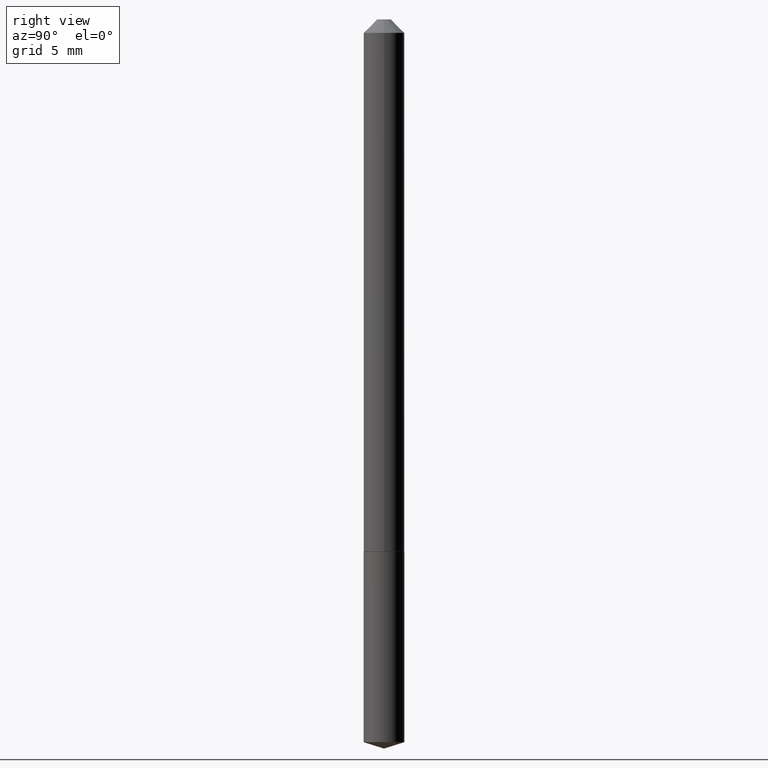
[diagram: clean part render]
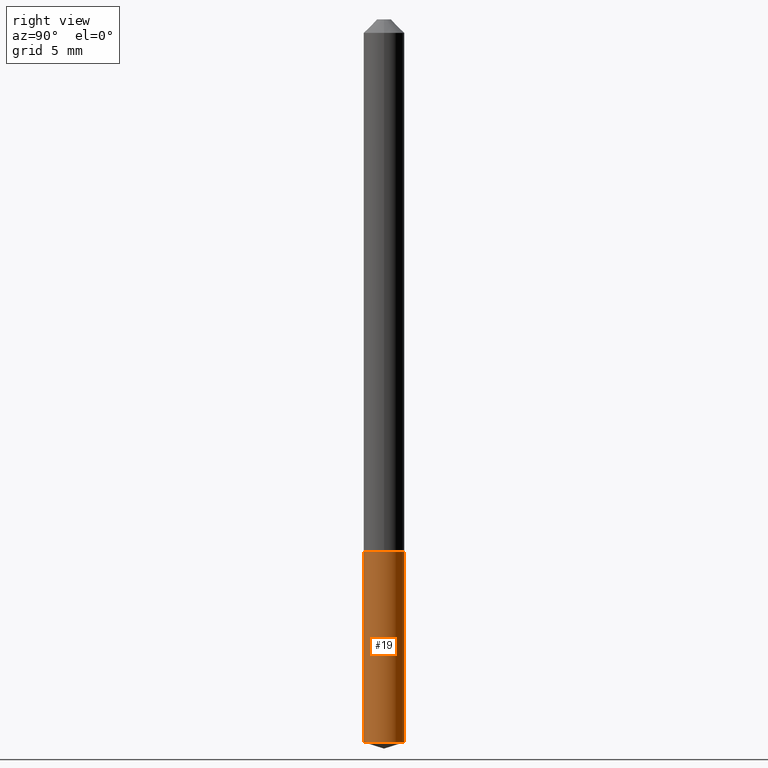
[diagram: same view with one face highlighted and labeled with its STEP entity id]
A machine part, right view. The second image highlights one B-rep face of the part: STEP entity #19.
In plain terms, the highlighted cylindrical surface (edge-blend (fillet) strip) has radius 1.2001 mm, axis along (-0, 0, 1).
Its self-contained STEP definition (entity closure, byte-faithful):
#17 = CIRCLE ( 'NONE', #94, 0.04724999999999999339 ) ;
#19 = ADVANCED_FACE ( 'NONE', ( #26 ), #149, .T. ) ;
#20 = VERTEX_POINT ( 'NONE', #139 ) ;
#24 = ORIENTED_EDGE ( 'NONE', *, *, #106, .F. ) ;
#26 = FACE_OUTER_BOUND ( 'NONE', #199, .T. ) ;
#28 = AXIS2_PLACEMENT_3D ( 'NONE', #212, #271, #115 ) ;
#54 = ORIENTED_EDGE ( 'NONE', *, *, #201, .T. ) ;
#73 = DIRECTION ( 'NONE',  ( -2.445489932409893586E-29, 3.491451084886863706E-15, 1.000000000000000000 ) ) ;
#83 = DIRECTION ( 'NONE',  ( -2.445489932409893586E-29, 3.491451084886863706E-15, 1.000000000000000000 ) ) ;
#92 = CARTESIAN_POINT ( 'NONE',  ( -3.299449865206457842E-16, -0.04725000000000431633, -1.236199999999999966 ) ) ;
#94 = AXIS2_PLACEMENT_3D ( 'NONE', #381, #73, #138 ) ;
#106 = EDGE_CURVE ( 'NONE', #126, #182, #179, .T. ) ;
#115 = DIRECTION ( 'NONE',  ( -6.982962677686265922E-15, -1.000000000000000000, 5.781688875479922944E-15 ) ) ;
#126 = VERTEX_POINT ( 'NONE', #143 ) ;
#128 = EDGE_CURVE ( 'NONE', #182, #270, #290, .T. ) ;
#137 = ORIENTED_EDGE ( 'NONE', *, *, #128, .F. ) ;
#138 = DIRECTION ( 'NONE',  ( -6.982962677686265922E-15, -1.000000000000000000, 5.781688875479922944E-15 ) ) ;
#139 = CARTESIAN_POINT ( 'NONE',  ( 3.357314426466882624E-16, 0.04724999999999413003, -1.678002132225468790 ) ) ;
#143 = CARTESIAN_POINT ( 'NONE',  ( -3.299449865206349866E-16, -0.04725000000000584288, -1.678002132225468124 ) ) ;
#148 = DIRECTION ( 'NONE',  ( -2.445489932409893305E-29, 3.491451084886864100E-15, 1.000000000000000000 ) ) ;
#149 = CYLINDRICAL_SURFACE ( 'NONE', #28, 0.04724999999999999339 ) ;
#160 = LINE ( 'NONE', #286, #304 ) ;
#179 = LINE ( 'NONE', #303, #197 ) ;
#182 = VERTEX_POINT ( 'NONE', #92 ) ;
#190 = CARTESIAN_POINT ( 'NONE',  ( 3.357314426466883117E-16, 0.04724999999999567740, -1.236200000000000632 ) ) ;
#193 = ORIENTED_EDGE ( 'NONE', *, *, #340, .T. ) ;
#197 = VECTOR ( 'NONE', #148, 39.37007874015748143 ) ;
#199 = EDGE_LOOP ( 'NONE', ( #193, #54, #137, #24 ) ) ;
#201 = EDGE_CURVE ( 'NONE', #20, #270, #160, .T. ) ;
#212 = CARTESIAN_POINT ( 'NONE',  ( 3.023088538206066600E-29, -4.316169231077897395E-15, -1.236200000000000410 ) ) ;
#222 = AXIS2_PLACEMENT_3D ( 'NONE', #359, #83, #269 ) ;
#269 = DIRECTION ( 'NONE',  ( -6.982962677686265922E-15, -1.000000000000000000, 5.781688875479922944E-15 ) ) ;
#270 = VERTEX_POINT ( 'NONE', #190 ) ;
#271 = DIRECTION ( 'NONE',  ( -2.445489932409893586E-29, 3.491451084886863706E-15, 1.000000000000000000 ) ) ;
#286 = CARTESIAN_POINT ( 'NONE',  ( 3.357314426466774648E-16, 0.04724999999999567740, -1.236200000000000632 ) ) ;
#288 = DIRECTION ( 'NONE',  ( -2.445489932409893305E-29, 3.491451084886864100E-15, 1.000000000000000000 ) ) ;
#290 = CIRCLE ( 'NONE', #222, 0.04724999999999999339 ) ;
#303 = CARTESIAN_POINT ( 'NONE',  ( -3.299449865206457842E-16, -0.04725000000000431633, -1.236199999999999966 ) ) ;
#304 = VECTOR ( 'NONE', #288, 39.37007874015748143 ) ;
#340 = EDGE_CURVE ( 'NONE', #126, #20, #17, .T. ) ;
#359 = CARTESIAN_POINT ( 'NONE',  ( 3.023088538206066600E-29, -4.316169231077897395E-15, -1.236200000000000410 ) ) ;
#381 = CARTESIAN_POINT ( 'NONE',  ( 4.103511204680673828E-29, -5.858699764941837648E-15, -1.678002132225468346 ) ) ;